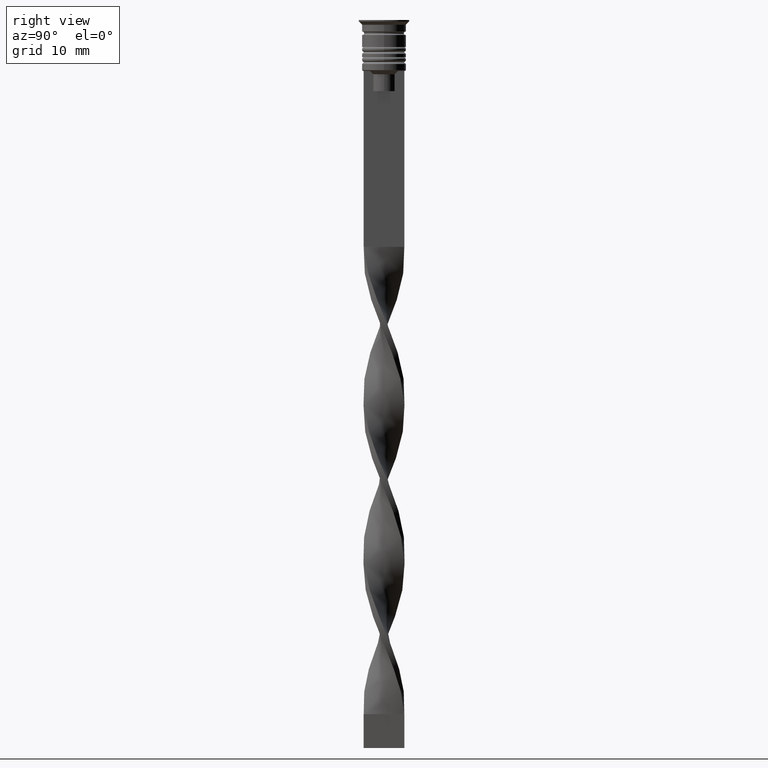
[diagram: clean part render]
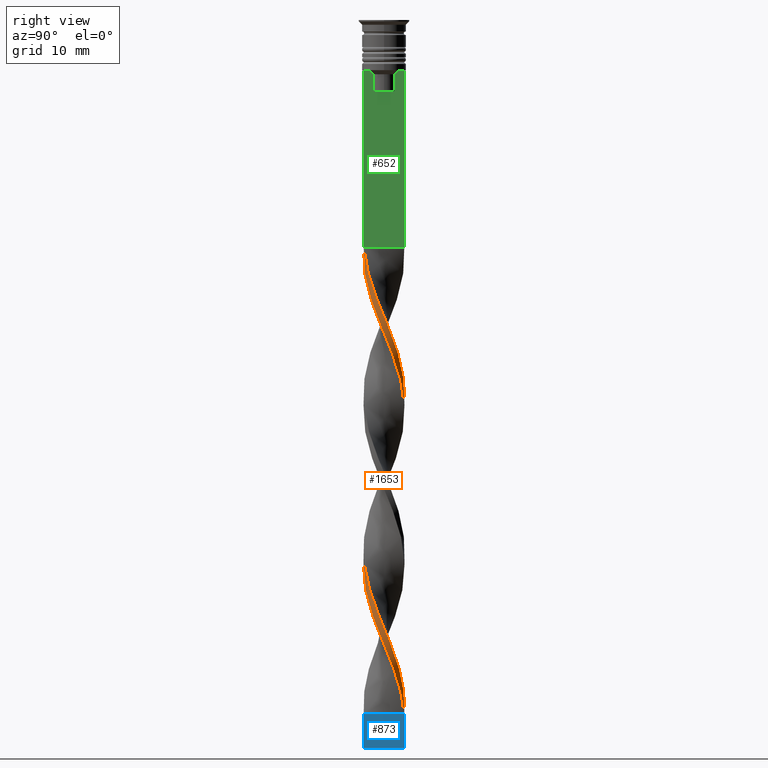
[diagram: same view with three faces highlighted in distinct colors, each labeled with its STEP entity id]
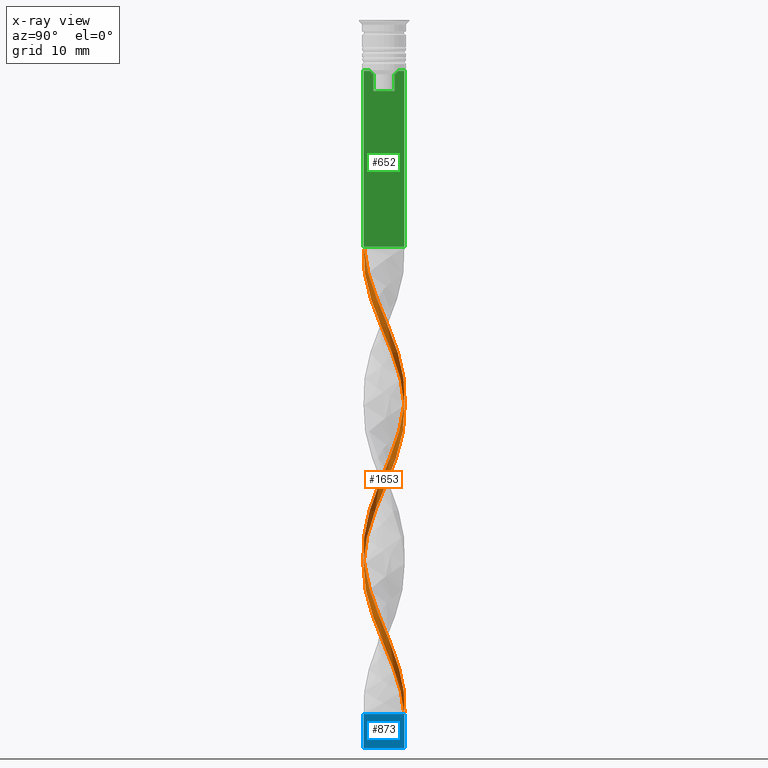
[diagram: x-ray of the same camera — body ghosted, the three highlighted faces saturated]
A machine part, right view with three faces highlighted in distinct colors.
The next image is the same camera in x-ray (body ghosted, the three faces saturated) — at least one of them is partly hidden behind the body in this view.
Their STEP definitions:

[orange] entity #1653 — the highlighted face is a freeform B-spline surface patch.
#3 = CARTESIAN_POINT ( 'NONE',  ( 1.203417901575699167, -2.793167620134377582, -81.26923076923077360 ) ) ;
#5 = CARTESIAN_POINT ( 'NONE',  ( 2.813682533735953228, 1.212256617197150721, -46.76923076923076650 ) ) ;
#6 = CARTESIAN_POINT ( 'NONE',  ( 0.9514415033047003423, -2.888729662981513790, -37.03846153846154010 ) ) ;
#21 = CARTESIAN_POINT ( 'NONE',  ( 2.627746284534977050, 1.531322782470313726, -47.65384615384616041 ) ) ;
#24 = CARTESIAN_POINT ( 'NONE',  ( 2.909946448908425243, -0.9584295337030735995, -41.46153846153846700 ) ) ;
#42 = CARTESIAN_POINT ( 'NONE',  ( 2.596021493184668572, -1.626975080790205919, -85.69230769230770761 ) ) ;
#44 = CARTESIAN_POINT ( 'NONE',  ( 2.982351171577512172, -0.5963065397849001137, -88.34615384615385381 ) ) ;
#50 =( BOUNDED_CURVE ( )  B_SPLINE_CURVE ( 2, ( #2878, #80, #1563, #62, #6, #2070, #547, #2139, #2862, #787, #2663, #837, #2613, #1078, #1061, #2895, #765, #2844, #3129, #581, #264, #1594, #3146, #2087, #531, #1628, #1367, #3111, #1037, #516, #2647, #315, #2409, #2108, #1835, #278, #802, #1114, #1435, #2726, #2212, #868, #2998, #1681, #665, #2749, #3250, #2679, #1715, #1918, #2946, #1387, #1165, #1645, #1416, #3213, #634, #3196, #2161, #1970, #397, #2432, #2966, #854, #349, #614, #648, #1694, #148, #99, #416, #2480, #1182, #2983, #905, #1456, #1664, #3234, #2696 ),
 .UNSPECIFIED., .F., .T. ) 
 B_SPLINE_CURVE_WITH_KNOTS ( ( 3, 2, 2, 2, 2, 2, 2, 2, 2, 2, 2, 2, 2, 2, 2, 2, 2, 2, 2, 2, 2, 2, 2, 2, 2, 2, 2, 2, 2, 2, 2, 2, 2, 2, 2, 2, 2, 2, 2, 3 ),
 ( 0.000000000000000000, 0.01923076923076923184, 0.03846153846153846367, 0.05769230769230768857, 0.07692307692307692735, 0.09615384615384615918, 0.1153846153846153771, 0.1346153846153846090, 0.1538461538461538547, 0.1730769230769230449, 0.1923076923076923184, 0.2115384615384615363, 0.2307692307692307543, 0.2500000000000000000, 0.2692307692307692180, 0.2884615384615384359, 0.3076923076923077094, 0.3269230769230769273, 0.3461538461538460898, 0.3653846153846153633, 0.3846153846153846367, 0.4038461538461539102, 0.4230769230769230727, 0.4423076923076922906, 0.4615384615384615086, 0.4807692307692307820, 0.5000000000000000000, 0.5192307692307692735, 0.5384615384615384359, 0.5576923076923077094, 0.5769230769230768718, 0.5961538461538461453, 0.6153846153846154188, 0.6346153846153845812, 0.6538461538461538547, 0.6730769230769230171, 0.6923076923076921796, 0.7115384615384615641, 0.7307692307692307265, 0.7500000000000000000 ),
 .UNSPECIFIED. ) 
 CURVE ( )  GEOMETRIC_REPRESENTATION_ITEM ( )  RATIONAL_B_SPLINE_CURVE ( ( 1.000000000000000000, 0.9927088740980539727, 1.000000000000000000, 0.9927088740980539727, 1.000000000000000000, 0.9927088740980539727, 1.000000000000000000, 0.9927088740980539727, 1.000000000000000000, 0.9927088740980539727, 1.000000000000000000, 0.9927088740980539727, 1.000000000000000000, 0.9927088740980539727, 1.000000000000000000, 0.9927088740980539727, 1.000000000000000000, 0.9927088740980539727, 1.000000000000000000, 0.9927088740980539727, 1.000000000000000000, 0.9927088740980539727, 1.000000000000000000, 0.9927088740980539727, 1.000000000000000000, 0.9927088740980539727, 1.000000000000000000, 0.9927088740980539727, 1.000000000000000000, 0.9927088740980539727, 1.000000000000000000, 0.9927088740980539727, 1.000000000000000000, 0.9927088740980539727, 1.000000000000000000, 0.9927088740980539727, 1.000000000000000000, 0.9927088740980539727, 1.000000000000000000, 0.9927088740980539727, 1.000000000000000000, 0.9927088740980539727, 1.000000000000000000, 0.9927088740980539727, 1.000000000000000000, 0.9927088740980539727, 1.000000000000000000, 0.9927088740980539727, 1.000000000000000000, 0.9927088740980539727, 1.000000000000000000, 0.9927088740980539727, 1.000000000000000000, 0.9927088740980539727, 1.000000000000000000, 0.9927088740980539727, 1.000000000000000000, 0.9927088740980539727, 1.000000000000000000, 0.9927088740980539727, 1.000000000000000000, 0.9927088740980539727, 1.000000000000000000, 0.9927088740980539727, 1.000000000000000000, 0.9927088740980539727, 1.000000000000000000, 0.9927088740980539727, 1.000000000000000000, 0.9927088740980539727, 1.000000000000000000, 0.9927088740980539727, 1.000000000000000000, 0.9927088740980539727, 1.000000000000000000, 0.9927088740980539727, 1.000000000000000000, 0.9927088740980539727, 1.000000000000000000 ) ) 
 REPRESENTATION_ITEM ( '' )  );
#59 = CARTESIAN_POINT ( 'NONE',  ( -2.752983971046547129, 1.292702307246639704, -63.57692307692308731 ) ) ;
#61 = CARTESIAN_POINT ( 'NONE',  ( 2.813682533735953228, 1.212256617197150721, -92.76923076923075939 ) ) ;
#62 = CARTESIAN_POINT ( 'NONE',  ( 0.6006862186325125919, -3.004255577232739949, -36.15384615384615330 ) ) ;
#79 = CARTESIAN_POINT ( 'NONE',  ( 2.441810035334000428, -1.850388947743477841, -41.46153846153846700 ) ) ;
#80 = CARTESIAN_POINT ( 'NONE',  ( -0.1357340503332185033, -3.060710991611130360, -34.38461538461538680 ) ) ;
#98 = CARTESIAN_POINT ( 'NONE',  ( 1.302196787976888759, 2.773203748730288076, -98.07692307692308020 ) ) ;
#99 = CARTESIAN_POINT ( 'NONE',  ( 2.909946448908426131, 0.9584295337030729334, -94.53846153846154721 ) ) ;
#112 = CARTESIAN_POINT ( 'NONE',  ( -0.1357340503332185311, -3.060710991611130360, -34.38461538461538680 ) ) ;
#148 = CARTESIAN_POINT ( 'NONE',  ( 2.982351171577512616, 0.5963065397848988924, -93.65384615384617462 ) ) ;
#161 = CARTESIAN_POINT ( 'NONE',  ( -3.022034030597048559, 0.5036723384328420927, -68.00000000000000000 ) ) ;
#173 = EDGE_CURVE ( 'NONE', #2765, #446, #1980, .T. ) ;
#174 = CARTESIAN_POINT ( 'NONE',  ( 1.615112600636834594, -2.577093573633701062, -84.80769230769232081 ) ) ;
#193 = CARTESIAN_POINT ( 'NONE',  ( 2.596021493184669016, 1.626975080790204142, -96.30769230769232081 ) ) ;
#211 = CARTESIAN_POINT ( 'NONE',  ( 0.8642659496667817187, -2.939289008388869640, -34.38461538461538680 ) ) ;
#224 = CARTESIAN_POINT ( 'NONE',  ( 2.131225204431203668, -2.200966749995606264, -37.92307692307692690 ) ) ;
#243 = CARTESIAN_POINT ( 'NONE',  ( -0.6006862186325142572, -3.004255577232739949, -76.84615384615386802 ) ) ;
#246 = CARTESIAN_POINT ( 'NONE',  ( -2.813682533735954117, -1.212256617197149833, -69.76923076923077360 ) ) ;
#261 = CARTESIAN_POINT ( 'NONE',  ( 2.184919224315391872, 2.115686173140295168, -49.42307692307693401 ) ) ;
#263 = CARTESIAN_POINT ( 'NONE',  ( -3.038394962421823831, -0.1347443962830561781, -67.11538461538461320 ) ) ;
#264 = CARTESIAN_POINT ( 'NONE',  ( 2.363623348807936786, 1.913970915392904759, -51.19230769230769340 ) ) ;
#274 = CARTESIAN_POINT ( 'NONE',  ( 3.022034030597048559, 0.5036723384328410935, -91.00000000000001421 ) ) ;
#277 = CARTESIAN_POINT ( 'NONE',  ( -1.615112600636836371, -2.577093573633699730, -74.19230769230769340 ) ) ;
#278 = CARTESIAN_POINT ( 'NONE',  ( -2.441810035333999540, 1.850388947743479395, -64.46153846153845279 ) ) ;
#294 = CARTESIAN_POINT ( 'NONE',  ( -1.615112600636836371, -2.577093573633699730, -74.19230769230769340 ) ) ;
#296 = CARTESIAN_POINT ( 'NONE',  ( 1.203417901575700499, 2.793167620134376694, -54.73076923076923350 ) ) ;
#312 = CARTESIAN_POINT ( 'NONE',  ( 3.054755894246598658, -0.2341835458667260728, -43.23076923076923350 ) ) ;
#314 = CARTESIAN_POINT ( 'NONE',  ( 0.8642659496667829400, 2.939289008388869640, -55.61538461538462741 ) ) ;
#315 = CARTESIAN_POINT ( 'NONE',  ( -1.302196787976887871, 2.773203748730288964, -60.92307692307692690 ) ) ;
#329 = CARTESIAN_POINT ( 'NONE',  ( 1.542569853484617060, -2.647046231879885081, -82.15384615384617462 ) ) ;
#348 = CARTESIAN_POINT ( 'NONE',  ( -0.4999999999999995559, 3.000000000000000000, -102.5000000000000142 ) ) ;
#349 = CARTESIAN_POINT ( 'NONE',  ( 2.917858282166500228, -0.8579644778149968509, -90.11538461538462741 ) ) ;
#365 = CARTESIAN_POINT ( 'NONE',  ( 0.1357340503332165604, -3.060710991611130805, -78.61538461538461320 ) ) ;
#373 = ORIENTED_EDGE ( 'NONE', *, *, #919, .T. ) ;
#377 = CARTESIAN_POINT ( 'NONE',  ( -0.1357340503332169490, 3.060710991611130360, -101.6153846153846274 ) ) ;
#379 = CARTESIAN_POINT ( 'NONE',  ( 0.9514415033047003423, -2.888729662981513790, -83.03846153846154721 ) ) ;
#396 = CARTESIAN_POINT ( 'NONE',  ( 0.2324760841496471830, -3.032483284421934933, -81.26923076923077360 ) ) ;
#397 = CARTESIAN_POINT ( 'NONE',  ( 2.184919224315390984, -2.115686173140296056, -86.57692307692308020 ) ) ;
#415 = CARTESIAN_POINT ( 'NONE',  ( -2.627746284534976162, 1.531322782470315280, -65.34615384615385381 ) ) ;
#416 = CARTESIAN_POINT ( 'NONE',  ( 2.752983971046547573, 1.292702307246638815, -95.42307692307693401 ) ) ;
#424 = CARTESIAN_POINT ( 'NONE',  ( 0.4999999999999998890, -3.000000000000000000, -33.50000000000000000 ) ) ;
#429 = CARTESIAN_POINT ( 'NONE',  ( -2.813682533735953228, 1.212256617197151165, -66.23076923076922640 ) ) ;
#444 = CARTESIAN_POINT ( 'NONE',  ( -2.917858282166500228, 0.8579644778149978501, -67.11538461538461320 ) ) ;
#446 = VERTEX_POINT ( 'NONE', #1547 ) ;
#456 = DIRECTION ( 'NONE',  ( -1.000000000000000000, 0.000000000000000000, 0.000000000000000000 ) ) ;
#468 = CARTESIAN_POINT ( 'NONE',  ( 2.363623348807935898, -1.913970915392906091, -38.80769230769230660 ) ) ;
#479 = CARTESIAN_POINT ( 'NONE',  ( 2.184919224315391872, 2.115686173140295168, -49.42307692307693401 ) ) ;
#513 = CARTESIAN_POINT ( 'NONE',  ( -0.2324760841496502084, -3.032483284421934489, -77.73076923076924061 ) ) ;
#515 = CARTESIAN_POINT ( 'NONE',  ( -0.4999999999999995559, 3.000000000000000000, -56.50000000000000711 ) ) ;
#516 = CARTESIAN_POINT ( 'NONE',  ( -0.6006862186325113706, 3.004255577232740393, -59.15384615384616041 ) ) ;
#527 = CARTESIAN_POINT ( 'NONE',  ( 2.752983971046547129, -1.292702307246639704, -86.57692307692308020 ) ) ;
#530 = CARTESIAN_POINT ( 'NONE',  ( -2.752983971046547129, 1.292702307246639704, -63.57692307692308731 ) ) ;
#531 = CARTESIAN_POINT ( 'NONE',  ( 1.203417901575700499, 2.793167620134376694, -54.73076923076923350 ) ) ;
#543 = CARTESIAN_POINT ( 'NONE',  ( -3.054755894246598658, 0.2341835458667258507, -66.23076923076922640 ) ) ;
#546 = CARTESIAN_POINT ( 'NONE',  ( 2.813682533735953228, -1.212256617197151165, -43.23076923076922640 ) ) ;
#547 = CARTESIAN_POINT ( 'NONE',  ( 1.615112600636834594, -2.577093573633701062, -38.80769230769230660 ) ) ;
#561 = CARTESIAN_POINT ( 'NONE',  ( -0.8642659496667810526, 2.939289008388869640, -57.38461538461538680 ) ) ;
#564 = CARTESIAN_POINT ( 'NONE',  ( 0.2324760841496471830, -3.032483284421934933, -35.26923076923077360 ) ) ;
#578 = CARTESIAN_POINT ( 'NONE',  ( -2.184919224315392317, -2.115686173140294724, -72.42307692307691980 ) ) ;
#580 = CARTESIAN_POINT ( 'NONE',  ( 2.184919224315390984, -2.115686173140296056, -40.57692307692308020 ) ) ;
#581 = CARTESIAN_POINT ( 'NONE',  ( 2.596021493184669016, 1.626975080790204364, -50.30769230769231370 ) ) ;
#596 = CARTESIAN_POINT ( 'NONE',  ( 3.022034030597048559, 0.5036723384328410935, -91.00000000000001421 ) ) ;
#605 = EDGE_CURVE ( 'NONE', #1507, #2770, #1225, .T. ) ;
#613 = CARTESIAN_POINT ( 'NONE',  ( -1.302196787976888759, -2.773203748730288076, -75.07692307692308020 ) ) ;
#614 = CARTESIAN_POINT ( 'NONE',  ( 3.022034030597048559, -0.5036723384328417596, -91.00000000000001421 ) ) ;
#634 = CARTESIAN_POINT ( 'NONE',  ( 0.9514415033047003423, -2.888729662981513790, -83.03846153846154721 ) ) ;
#642 = CARTESIAN_POINT ( 'NONE',  ( 0.1666666666666671293, 3.000000000000000000, -102.5000000000000142 ) ) ;
#645 = CARTESIAN_POINT ( 'NONE',  ( 1.615112600636835927, 2.577093573633700174, -97.19230769230770761 ) ) ;
#647 = CARTESIAN_POINT ( 'NONE',  ( 2.982351171577512616, 0.5963065397848988924, -93.65384615384617462 ) ) ;
#648 = CARTESIAN_POINT ( 'NONE',  ( 3.038394962421823386, -0.1347443962830584541, -91.88461538461540101 ) ) ;
#663 = CARTESIAN_POINT ( 'NONE',  ( -1.542569853484618392, -2.647046231879884193, -76.84615384615386802 ) ) ;
#665 = CARTESIAN_POINT ( 'NONE',  ( -2.752983971046547573, -1.292702307246638149, -72.42307692307691980 ) ) ;
#677 = CARTESIAN_POINT ( 'NONE',  ( 0.5000000000000004441, 3.000000000000000000, -102.5000000000000142 ) ) ;
#682 = ORIENTED_EDGE ( 'NONE', *, *, #605, .T. ) ;
#697 = CARTESIAN_POINT ( 'NONE',  ( 2.184919224315390984, -2.115686173140296056, -86.57692307692308020 ) ) ;
#733 = CARTESIAN_POINT ( 'NONE',  ( 0.4999999999999998890, -3.000000000000000000, -33.50000000000000000 ) ) ;
#738 =( BOUNDED_CURVE ( )  B_SPLINE_CURVE ( 2, ( #1746, #2764, #2510, #3126, #3142, #3157, #2875, #799, #1847, #2644, #2337, #312, #1280, #1075, #1862, #2066, #21, #1296, #261, #1033, #1611, #2120, #816, #1349, #3089, #1881, #2889, #561, #2390, #2376, #832, #2082, #2623, #783, #59, #1090, #2135, #543, #3346, #1832, #2910, #1056, #1590, #1575, #578, #2105, #294, #2574, #762, #243, #513, #2324, #1332, #1018, #3, #3107, #1809, #2840, #2859, #42, #527, #1559, #1311, #2593, #2609, #274, #2353, #1144, #2188, #1642, #2427, #1179, #645, #2675, #851, #2660, #2962, #377, #3209 ),
 .UNSPECIFIED., .F., .T. ) 
 B_SPLINE_CURVE_WITH_KNOTS ( ( 3, 2, 2, 2, 2, 2, 2, 2, 2, 2, 2, 2, 2, 2, 2, 2, 2, 2, 2, 2, 2, 2, 2, 2, 2, 2, 2, 2, 2, 2, 2, 2, 2, 2, 2, 2, 2, 2, 2, 3 ),
 ( 0.000000000000000000, 0.01923076923076923184, 0.03846153846153846367, 0.05769230769230768857, 0.07692307692307692735, 0.09615384615384615918, 0.1153846153846153771, 0.1346153846153846090, 0.1538461538461538547, 0.1730769230769230449, 0.1923076923076923184, 0.2115384615384615363, 0.2307692307692307543, 0.2500000000000000000, 0.2692307692307692180, 0.2884615384615384359, 0.3076923076923077094, 0.3269230769230769273, 0.3461538461538460898, 0.3653846153846153633, 0.3846153846153846367, 0.4038461538461539102, 0.4230769230769230727, 0.4423076923076922906, 0.4615384615384615086, 0.4807692307692307820, 0.5000000000000000000, 0.5192307692307692735, 0.5384615384615384359, 0.5576923076923077094, 0.5769230769230768718, 0.5961538461538461453, 0.6153846153846154188, 0.6346153846153845812, 0.6538461538461538547, 0.6730769230769230171, 0.6923076923076921796, 0.7115384615384615641, 0.7307692307692307265, 0.7500000000000000000 ),
 .UNSPECIFIED. ) 
 CURVE ( )  GEOMETRIC_REPRESENTATION_ITEM ( )  RATIONAL_B_SPLINE_CURVE ( ( 1.000000000000000000, 0.9927088740980539727, 1.000000000000000000, 0.9927088740980539727, 1.000000000000000000, 0.9927088740980539727, 1.000000000000000000, 0.9927088740980539727, 1.000000000000000000, 0.9927088740980539727, 1.000000000000000000, 0.9927088740980539727, 1.000000000000000000, 0.9927088740980539727, 1.000000000000000000, 0.9927088740980539727, 1.000000000000000000, 0.9927088740980539727, 1.000000000000000000, 0.9927088740980539727, 1.000000000000000000, 0.9927088740980539727, 1.000000000000000000, 0.9927088740980539727, 1.000000000000000000, 0.9927088740980539727, 1.000000000000000000, 0.9927088740980539727, 1.000000000000000000, 0.9927088740980539727, 1.000000000000000000, 0.9927088740980539727, 1.000000000000000000, 0.9927088740980539727, 1.000000000000000000, 0.9927088740980539727, 1.000000000000000000, 0.9927088740980539727, 1.000000000000000000, 0.9927088740980539727, 1.000000000000000000, 0.9927088740980539727, 1.000000000000000000, 0.9927088740980539727, 1.000000000000000000, 0.9927088740980539727, 1.000000000000000000, 0.9927088740980539727, 1.000000000000000000, 0.9927088740980539727, 1.000000000000000000, 0.9927088740980539727, 1.000000000000000000, 0.9927088740980539727, 1.000000000000000000, 0.9927088740980539727, 1.000000000000000000, 0.9927088740980539727, 1.000000000000000000, 0.9927088740980539727, 1.000000000000000000, 0.9927088740980539727, 1.000000000000000000, 0.9927088740980539727, 1.000000000000000000, 0.9927088740980539727, 1.000000000000000000, 0.9927088740980539727, 1.000000000000000000, 0.9927088740980539727, 1.000000000000000000, 0.9927088740980539727, 1.000000000000000000, 0.9927088740980539727, 1.000000000000000000, 0.9927088740980539727, 1.000000000000000000, 0.9927088740980539727, 1.000000000000000000 ) ) 
 REPRESENTATION_ITEM ( '' )  );
#750 = CARTESIAN_POINT ( 'NONE',  ( -2.917858282166500672, -0.8579644778149938533, -68.88461538461538680 ) ) ;
#762 = CARTESIAN_POINT ( 'NONE',  ( -0.9514415033047030068, -2.888729662981513346, -75.96153846153846700 ) ) ;
#764 = CARTESIAN_POINT ( 'NONE',  ( -1.542569853484615727, 2.647046231879885525, -59.15384615384616041 ) ) ;
#765 = CARTESIAN_POINT ( 'NONE',  ( 2.982351171577512616, 0.5963065397848988924, -47.65384615384616041 ) ) ;
#783 = CARTESIAN_POINT ( 'NONE',  ( -2.596021493184667683, 1.626975080790206141, -62.69230769230770051 ) ) ;
#786 = CARTESIAN_POINT ( 'NONE',  ( 2.596021493184668572, -1.626975080790205697, -39.69230769230769340 ) ) ;
#787 = CARTESIAN_POINT ( 'NONE',  ( 2.441810035334000428, -1.850388947743478063, -41.46153846153846700 ) ) ;
#799 = CARTESIAN_POINT ( 'NONE',  ( 2.596021493184668572, -1.626975080790205919, -39.69230769230769340 ) ) ;
#801 = CARTESIAN_POINT ( 'NONE',  ( 2.441810035334000872, 1.850388947743477175, -94.53846153846153300 ) ) ;
#802 = CARTESIAN_POINT ( 'NONE',  ( -2.627746284534976162, 1.531322782470315280, -65.34615384615385381 ) ) ;
#816 = CARTESIAN_POINT ( 'NONE',  ( 0.9514415033047012304, 2.888729662981513346, -52.96153846153845990 ) ) ;
#818 = CARTESIAN_POINT ( 'NONE',  ( 2.131225204431203668, -2.200966749995606264, -83.92307692307691980 ) ) ;
#832 = CARTESIAN_POINT ( 'NONE',  ( -1.836897528957910364, 2.424006490937745451, -60.03846153846154010 ) ) ;
#836 = CARTESIAN_POINT ( 'NONE',  ( -0.6006862186325113706, 3.004255577232740393, -59.15384615384616041 ) ) ;
#837 = CARTESIAN_POINT ( 'NONE',  ( 2.813682533735953228, -1.212256617197151165, -43.23076923076923350 ) ) ;
#851 = CARTESIAN_POINT ( 'NONE',  ( 0.9514415033047012304, 2.888729662981513346, -98.96153846153848122 ) ) ;
#853 = CARTESIAN_POINT ( 'NONE',  ( 0.4999999999999998890, -3.000000000000000000, -79.50000000000001421 ) ) ;
#854 = CARTESIAN_POINT ( 'NONE',  ( 2.813682533735953228, -1.212256617197151165, -89.23076923076924061 ) ) ;
#867 = CARTESIAN_POINT ( 'NONE',  ( 3.054755894246598658, 0.2341835458667255176, -46.76923076923076650 ) ) ;
#868 = CARTESIAN_POINT ( 'NONE',  ( -3.054755894246599102, -0.2341835458667243242, -69.76923076923077360 ) ) ;
#904 = CARTESIAN_POINT ( 'NONE',  ( -0.8642659496667833841, -2.939289008388869195, -78.61538461538461320 ) ) ;
#905 = CARTESIAN_POINT ( 'NONE',  ( 1.836897528957911030, 2.424006490937744562, -98.96153846153848122 ) ) ;
#919 = EDGE_CURVE ( 'NONE', #2770, #446, #50, .T. ) ;
#934 = CARTESIAN_POINT ( 'NONE',  ( 2.752983971046547573, 1.292702307246638815, -95.42307692307693401 ) ) ;
#953 = CARTESIAN_POINT ( 'NONE',  ( -2.752983971046547573, -1.292702307246638149, -72.42307692307691980 ) ) ;
#986 = CARTESIAN_POINT ( 'NONE',  ( 0.6006862186325140351, 3.004255577232739949, -53.84615384615384670 ) ) ;
#1006 = CARTESIAN_POINT ( 'NONE',  ( -1.203417901575698279, 2.793167620134377582, -58.26923076923077360 ) ) ;
#1018 = CARTESIAN_POINT ( 'NONE',  ( 0.8642659496667816077, -2.939289008388869640, -80.38461538461538680 ) ) ;
#1021 = CARTESIAN_POINT ( 'NONE',  ( -2.627746284534977050, -1.531322782470314170, -70.65384615384616041 ) ) ;
#1033 = CARTESIAN_POINT ( 'NONE',  ( 1.928028413296782428, 2.380983398537112716, -50.30769230769231370 ) ) ;
#1037 = CARTESIAN_POINT ( 'NONE',  ( -0.2324760841496461561, 3.032483284421934933, -58.26923076923077360 ) ) ;
#1056 = CARTESIAN_POINT ( 'NONE',  ( -2.813682533735954117, -1.212256617197149833, -69.76923076923077360 ) ) ;
#1061 = CARTESIAN_POINT ( 'NONE',  ( 3.038394962421823386, -0.1347443962830584541, -45.88461538461538680 ) ) ;
#1075 = CARTESIAN_POINT ( 'NONE',  ( 3.022034030597048559, 0.5036723384328410935, -45.00000000000000711 ) ) ;
#1077 = CARTESIAN_POINT ( 'NONE',  ( 0.9514415033047003423, -2.888729662981513790, -37.03846153846154010 ) ) ;
#1078 = CARTESIAN_POINT ( 'NONE',  ( 3.022034030597048559, -0.5036723384328417596, -45.00000000000000711 ) ) ;
#1089 =( BOUNDED_SURFACE ( )  B_SPLINE_SURFACE ( 1, 2, ( 
 ( #733, #211, #1796, #2107, #1540, #224, #468, #786, #3332, #24, #2086, #2577, #1314, #1813, #1765, #5, #1283, #2326, #479, #2558, #2357, #1834, #1263, #986, #2544, #3091, #515, #3349, #1006, #764, #2290, #1562, #3312, #2861, #530, #2596, #2309, #2037, #263, #1299, #750, #246, #1021, #2069, #2340, #1577, #277, #613, #1663, #2929, #2912, #365, #853, #1146, #2431, #329, #1366, #818, #1614, #1401, #3195, #1865, #44, #1849, #2159, #596, #2407, #61, #3178, #801, #1644, #2877, #1130, #98, #1902, #2122, #2444, #2677, #348 ),
 ( #2378, #112, #564, #2646, #1077, #1386, #1335, #1113, #580, #79, #2894, #546, #2695, #2175, #3145, #867, #1917, #1093, #1884, #2944, #2662, #2190, #1593, #2628, #296, #314, #2137, #3161, #1351, #836, #2392, #1627, #3015, #3233, #2495, #2460, #415, #429, #444, #161, #1455, #1198, #3281, #2982, #953, #1938, #1731, #2509, #2710, #663, #1954, #904, #1693, #2257, #396, #2003, #379, #1714, #174, #1484, #697, #1745, #2526, #1969, #2997, #3028, #2777, #1434, #647, #2748, #934, #193, #1229, #1415, #1680, #2240, #3262, #2226, #3211 ) ),
 .UNSPECIFIED., .F., .F., .F. ) 
 B_SPLINE_SURFACE_WITH_KNOTS ( ( 2, 2 ),
 ( 3, 2, 2, 2, 2, 2, 2, 2, 2, 2, 2, 2, 2, 2, 2, 2, 2, 2, 2, 2, 2, 2, 2, 2, 2, 2, 2, 2, 2, 2, 2, 2, 2, 2, 2, 2, 2, 2, 2, 3 ),
 ( 0.000000000000000000, 1.000000000000000000 ),
 ( 0.000000000000000000, 0.01923076923076923184, 0.03846153846153846367, 0.05769230769230769551, 0.07692307692307692735, 0.09615384615384615918, 0.1153846153846153910, 0.1346153846153846090, 0.1538461538461538547, 0.1730769230769230727, 0.1923076923076923184, 0.2115384615384615363, 0.2307692307692307820, 0.2500000000000000000, 0.2692307692307692180, 0.2884615384615384359, 0.3076923076923077094, 0.3269230769230769273, 0.3461538461538461453, 0.3653846153846153633, 0.3846153846153846367, 0.4038461538461538547, 0.4230769230769230727, 0.4423076923076922906, 0.4615384615384615641, 0.4807692307692307820, 0.5000000000000000000, 0.5192307692307692735, 0.5384615384615384359, 0.5576923076923077094, 0.5769230769230768718, 0.5961538461538461453, 0.6153846153846154188, 0.6346153846153845812, 0.6538461538461538547, 0.6730769230769231282, 0.6923076923076922906, 0.7115384615384615641, 0.7307692307692307265, 0.7500000000000000000 ),
 .UNSPECIFIED. ) 
 GEOMETRIC_REPRESENTATION_ITEM ( )  RATIONAL_B_SPLINE_SURFACE ( (
 ( 1.000000000000000000, 0.9927088740980539727, 1.000000000000000000, 0.9927088740980539727, 1.000000000000000000, 0.9927088740980539727, 1.000000000000000000, 0.9927088740980539727, 1.000000000000000000, 0.9927088740980539727, 1.000000000000000000, 0.9927088740980539727, 1.000000000000000000, 0.9927088740980539727, 1.000000000000000000, 0.9927088740980539727, 1.000000000000000000, 0.9927088740980539727, 1.000000000000000000, 0.9927088740980539727, 1.000000000000000000, 0.9927088740980539727, 1.000000000000000000, 0.9927088740980539727, 1.000000000000000000, 0.9927088740980539727, 1.000000000000000000, 0.9927088740980539727, 1.000000000000000000, 0.9927088740980539727, 1.000000000000000000, 0.9927088740980539727, 1.000000000000000000, 0.9927088740980539727, 1.000000000000000000, 0.9927088740980539727, 1.000000000000000000, 0.9927088740980539727, 1.000000000000000000, 0.9927088740980539727, 1.000000000000000000, 0.9927088740980539727, 1.000000000000000000, 0.9927088740980539727, 1.000000000000000000, 0.9927088740980539727, 1.000000000000000000, 0.9927088740980539727, 1.000000000000000000, 0.9927088740980539727, 1.000000000000000000, 0.9927088740980539727, 1.000000000000000000, 0.9927088740980539727, 1.000000000000000000, 0.9927088740980539727, 1.000000000000000000, 0.9927088740980539727, 1.000000000000000000, 0.9927088740980539727, 1.000000000000000000, 0.9927088740980539727, 1.000000000000000000, 0.9927088740980539727, 1.000000000000000000, 0.9927088740980539727, 1.000000000000000000, 0.9927088740980539727, 1.000000000000000000, 0.9927088740980539727, 1.000000000000000000, 0.9927088740980539727, 1.000000000000000000, 0.9927088740980539727, 1.000000000000000000, 0.9927088740980539727, 1.000000000000000000, 0.9927088740980539727, 1.000000000000000000),
 ( 1.000000000000000000, 0.9927088740980539727, 1.000000000000000000, 0.9927088740980539727, 1.000000000000000000, 0.9927088740980539727, 1.000000000000000000, 0.9927088740980539727, 1.000000000000000000, 0.9927088740980539727, 1.000000000000000000, 0.9927088740980539727, 1.000000000000000000, 0.9927088740980539727, 1.000000000000000000, 0.9927088740980539727, 1.000000000000000000, 0.9927088740980539727, 1.000000000000000000, 0.9927088740980539727, 1.000000000000000000, 0.9927088740980539727, 1.000000000000000000, 0.9927088740980539727, 1.000000000000000000, 0.9927088740980539727, 1.000000000000000000, 0.9927088740980539727, 1.000000000000000000, 0.9927088740980539727, 1.000000000000000000, 0.9927088740980539727, 1.000000000000000000, 0.9927088740980539727, 1.000000000000000000, 0.9927088740980539727, 1.000000000000000000, 0.9927088740980539727, 1.000000000000000000, 0.9927088740980539727, 1.000000000000000000, 0.9927088740980539727, 1.000000000000000000, 0.9927088740980539727, 1.000000000000000000, 0.9927088740980539727, 1.000000000000000000, 0.9927088740980539727, 1.000000000000000000, 0.9927088740980539727, 1.000000000000000000, 0.9927088740980539727, 1.000000000000000000, 0.9927088740980539727, 1.000000000000000000, 0.9927088740980539727, 1.000000000000000000, 0.9927088740980539727, 1.000000000000000000, 0.9927088740980539727, 1.000000000000000000, 0.9927088740980539727, 1.000000000000000000, 0.9927088740980539727, 1.000000000000000000, 0.9927088740980539727, 1.000000000000000000, 0.9927088740980539727, 1.000000000000000000, 0.9927088740980539727, 1.000000000000000000, 0.9927088740980539727, 1.000000000000000000, 0.9927088740980539727, 1.000000000000000000, 0.9927088740980539727, 1.000000000000000000, 0.9927088740980539727, 1.000000000000000000) ) ) 
 REPRESENTATION_ITEM ( '' )  SURFACE ( )  );
#1090 = CARTESIAN_POINT ( 'NONE',  ( -2.909946448908425243, 0.9584295337030753759, -64.46153846153845279 ) ) ;
#1093 = CARTESIAN_POINT ( 'NONE',  ( 2.909946448908425687, 0.9584295337030729334, -48.53846153846154010 ) ) ;
#1113 = CARTESIAN_POINT ( 'NONE',  ( 1.928028413296781762, -2.380983398537113604, -39.69230769230769340 ) ) ;
#1114 = CARTESIAN_POINT ( 'NONE',  ( -2.813682533735953228, 1.212256617197151165, -66.23076923076922640 ) ) ;
#1130 = CARTESIAN_POINT ( 'NONE',  ( 1.615112600636835927, 2.577093573633700174, -97.19230769230770761 ) ) ;
#1144 = CARTESIAN_POINT ( 'NONE',  ( 2.813682533735953228, 1.212256617197150721, -92.76923076923077360 ) ) ;
#1146 = CARTESIAN_POINT ( 'NONE',  ( 0.8642659496667817187, -2.939289008388869640, -80.38461538461538680 ) ) ;
#1165 = CARTESIAN_POINT ( 'NONE',  ( -0.5000000000000001110, -3.000000000000000000, -79.50000000000001421 ) ) ;
#1171 = EDGE_CURVE ( 'NONE', #1507, #2765, #738, .T. ) ;
#1179 = CARTESIAN_POINT ( 'NONE',  ( 1.928028413296782428, 2.380983398537112716, -96.30769230769232081 ) ) ;
#1180 = ORIENTED_EDGE ( 'NONE', *, *, #173, .F. ) ;
#1182 = CARTESIAN_POINT ( 'NONE',  ( 2.363623348807936786, 1.913970915392904759, -97.19230769230770761 ) ) ;
#1198 = CARTESIAN_POINT ( 'NONE',  ( -3.054755894246599102, -0.2341835458667243519, -69.76923076923077360 ) ) ;
#1225 = LINE ( 'NONE', #424, #3001 ) ;
#1229 = CARTESIAN_POINT ( 'NONE',  ( 2.363623348807936786, 1.913970915392904759, -97.19230769230770761 ) ) ;
#1263 = CARTESIAN_POINT ( 'NONE',  ( 0.9514415033047012304, 2.888729662981513346, -52.96153846153845990 ) ) ;
#1280 = CARTESIAN_POINT ( 'NONE',  ( 3.038394962421823831, 0.1347443962830572051, -44.11538461538462030 ) ) ;
#1283 = CARTESIAN_POINT ( 'NONE',  ( 2.627746284534977050, 1.531322782470313726, -47.65384615384616041 ) ) ;
#1296 = CARTESIAN_POINT ( 'NONE',  ( 2.441810035334000872, 1.850388947743477397, -48.53846153846154721 ) ) ;
#1299 = CARTESIAN_POINT ( 'NONE',  ( -3.022034030597048559, -0.5036723384328407604, -68.00000000000000000 ) ) ;
#1311 = CARTESIAN_POINT ( 'NONE',  ( 2.982351171577512172, -0.5963065397849001137, -88.34615384615385381 ) ) ;
#1314 = CARTESIAN_POINT ( 'NONE',  ( 3.038394962421823831, 0.1347443962830572051, -44.11538461538462030 ) ) ;
#1332 = CARTESIAN_POINT ( 'NONE',  ( 0.4999999999999998890, -3.000000000000000000, -79.50000000000001421 ) ) ;
#1335 = CARTESIAN_POINT ( 'NONE',  ( 1.615112600636834594, -2.577093573633701062, -38.80769230769230660 ) ) ;
#1349 = CARTESIAN_POINT ( 'NONE',  ( 0.6006862186325140351, 3.004255577232739949, -53.84615384615384670 ) ) ;
#1351 = CARTESIAN_POINT ( 'NONE',  ( -0.2324760841496461561, 3.032483284421934933, -58.26923076923077360 ) ) ;
#1366 = CARTESIAN_POINT ( 'NONE',  ( 1.836897528957910364, -2.424006490937745451, -83.03846153846154721 ) ) ;
#1367 = CARTESIAN_POINT ( 'NONE',  ( 0.5000000000000004441, 3.000000000000000000, -56.50000000000000711 ) ) ;
#1386 = CARTESIAN_POINT ( 'NONE',  ( 1.302196787976887871, -2.773203748730288520, -37.92307692307692690 ) ) ;
#1387 = CARTESIAN_POINT ( 'NONE',  ( -0.8642659496667834951, -2.939289008388869195, -78.61538461538461320 ) ) ;
#1393 = CARTESIAN_POINT ( 'NONE',  ( 0.4999999999999998890, -3.000000000000000000, -33.50000000000000000 ) ) ;
#1401 = CARTESIAN_POINT ( 'NONE',  ( 2.596021493184668572, -1.626975080790205697, -85.69230769230770761 ) ) ;
#1415 = CARTESIAN_POINT ( 'NONE',  ( 2.131225204431204556, 2.200966749995605820, -98.07692307692308020 ) ) ;
#1416 = CARTESIAN_POINT ( 'NONE',  ( 0.2324760841496471830, -3.032483284421934933, -81.26923076923077360 ) ) ;
#1434 = CARTESIAN_POINT ( 'NONE',  ( 3.054755894246598658, 0.2341835458667255176, -92.76923076923075939 ) ) ;
#1435 = CARTESIAN_POINT ( 'NONE',  ( -2.917858282166500228, 0.8579644778149978501, -67.11538461538461320 ) ) ;
#1455 = CARTESIAN_POINT ( 'NONE',  ( -3.038394962421823386, 0.1347443962830601472, -68.88461538461538680 ) ) ;
#1456 = CARTESIAN_POINT ( 'NONE',  ( 1.542569853484617948, 2.647046231879884193, -99.84615384615386802 ) ) ;
#1484 = CARTESIAN_POINT ( 'NONE',  ( 1.928028413296781762, -2.380983398537113604, -85.69230769230770761 ) ) ;
#1507 = VERTEX_POINT ( 'NONE', #1393 ) ;
#1540 = CARTESIAN_POINT ( 'NONE',  ( 1.836897528957910364, -2.424006490937745451, -37.03846153846154010 ) ) ;
#1547 = CARTESIAN_POINT ( 'NONE',  ( 0.5000000000000004441, 3.000000000000000000, -102.5000000000000142 ) ) ;
#1559 = CARTESIAN_POINT ( 'NONE',  ( 2.909946448908425687, -0.9584295337030735995, -87.46153846153849543 ) ) ;
#1562 = CARTESIAN_POINT ( 'NONE',  ( -2.131225204431203668, 2.200966749995606708, -60.92307692307691980 ) ) ;
#1563 = CARTESIAN_POINT ( 'NONE',  ( 0.2324760841496471830, -3.032483284421934933, -35.26923076923077360 ) ) ;
#1575 = CARTESIAN_POINT ( 'NONE',  ( -2.441810035334001761, -1.850388947743476509, -71.53846153846154721 ) ) ;
#1577 = CARTESIAN_POINT ( 'NONE',  ( -1.928028413296783983, -2.380983398537111828, -73.30769230769232081 ) ) ;
#1590 = CARTESIAN_POINT ( 'NONE',  ( -2.627746284534977050, -1.531322782470314170, -70.65384615384616041 ) ) ;
#1593 = CARTESIAN_POINT ( 'NONE',  ( 1.836897528957911030, 2.424006490937744562, -52.96153846153845990 ) ) ;
#1594 = CARTESIAN_POINT ( 'NONE',  ( 2.131225204431204556, 2.200966749995605820, -52.07692307692308020 ) ) ;
#1611 = CARTESIAN_POINT ( 'NONE',  ( 1.615112600636835927, 2.577093573633700174, -51.19230769230769340 ) ) ;
#1614 = CARTESIAN_POINT ( 'NONE',  ( 2.363623348807935898, -1.913970915392906091, -84.80769230769232081 ) ) ;
#1627 = CARTESIAN_POINT ( 'NONE',  ( -1.302196787976887649, 2.773203748730288964, -60.92307692307691980 ) ) ;
#1628 = CARTESIAN_POINT ( 'NONE',  ( 0.8642659496667830510, 2.939289008388869640, -55.61538461538462741 ) ) ;
#1642 = CARTESIAN_POINT ( 'NONE',  ( 2.441810035334000872, 1.850388947743477397, -94.53846153846154721 ) ) ;
#1644 = CARTESIAN_POINT ( 'NONE',  ( 2.184919224315391872, 2.115686173140295168, -95.42307692307693401 ) ) ;
#1645 = CARTESIAN_POINT ( 'NONE',  ( -0.1357340503332185033, -3.060710991611130360, -80.38461538461538680 ) ) ;
#1653 = ADVANCED_FACE ( 'NONE', ( #2843 ), #1089, .T. ) ;
#1663 = CARTESIAN_POINT ( 'NONE',  ( -0.9514415033047030068, -2.888729662981513346, -75.96153846153846700 ) ) ;
#1664 = CARTESIAN_POINT ( 'NONE',  ( 1.203417901575700499, 2.793167620134376694, -100.7307692307692406 ) ) ;
#1680 = CARTESIAN_POINT ( 'NONE',  ( 1.836897528957911030, 2.424006490937744562, -98.96153846153848122 ) ) ;
#1681 = CARTESIAN_POINT ( 'NONE',  ( -2.909946448908426575, -0.9584295337030714901, -71.53846153846154721 ) ) ;
#1693 = CARTESIAN_POINT ( 'NONE',  ( -0.5000000000000001110, -3.000000000000000000, -79.50000000000001421 ) ) ;
#1694 = CARTESIAN_POINT ( 'NONE',  ( 3.054755894246598658, 0.2341835458667255176, -92.76923076923077360 ) ) ;
#1706 = CARTESIAN_POINT ( 'NONE',  ( -0.4999999999999995559, 3.000000000000000000, -102.5000000000000142 ) ) ;
#1714 = CARTESIAN_POINT ( 'NONE',  ( 1.302196787976887871, -2.773203748730288520, -83.92307692307691980 ) ) ;
#1715 = CARTESIAN_POINT ( 'NONE',  ( -1.836897528957912584, -2.424006490937744118, -75.96153846153846700 ) ) ;
#1731 = CARTESIAN_POINT ( 'NONE',  ( -2.363623348807936786, -1.913970915392904315, -74.19230769230769340 ) ) ;
#1745 = CARTESIAN_POINT ( 'NONE',  ( 2.441810035334000428, -1.850388947743477841, -87.46153846153849543 ) ) ;
#1746 = CARTESIAN_POINT ( 'NONE',  ( 0.4999999999999998890, -3.000000000000000000, -33.50000000000000000 ) ) ;
#1765 = CARTESIAN_POINT ( 'NONE',  ( 2.917858282166500672, 0.8579644778149956297, -45.88461538461538680 ) ) ;
#1796 = CARTESIAN_POINT ( 'NONE',  ( 1.203417901575699167, -2.793167620134377582, -35.26923076923077360 ) ) ;
#1809 = CARTESIAN_POINT ( 'NONE',  ( 1.836897528957910364, -2.424006490937745451, -83.03846153846154721 ) ) ;
#1813 = CARTESIAN_POINT ( 'NONE',  ( 3.022034030597048559, 0.5036723384328410935, -45.00000000000000711 ) ) ;
#1832 = CARTESIAN_POINT ( 'NONE',  ( -3.022034030597048559, -0.5036723384328408715, -68.00000000000000000 ) ) ;
#1834 = CARTESIAN_POINT ( 'NONE',  ( 1.302196787976888759, 2.773203748730288076, -52.07692307692308020 ) ) ;
#1835 = CARTESIAN_POINT ( 'NONE',  ( -2.184919224315390984, 2.115686173140296056, -63.57692307692308731 ) ) ;
#1847 = CARTESIAN_POINT ( 'NONE',  ( 2.752983971046547129, -1.292702307246639704, -40.57692307692308020 ) ) ;
#1849 = CARTESIAN_POINT ( 'NONE',  ( 3.054755894246598658, -0.2341835458667260450, -89.23076923076922640 ) ) ;
#1862 = CARTESIAN_POINT ( 'NONE',  ( 2.917858282166500672, 0.8579644778149956297, -45.88461538461538680 ) ) ;
#1865 = CARTESIAN_POINT ( 'NONE',  ( 2.909946448908425243, -0.9584295337030735995, -87.46153846153849543 ) ) ;
#1881 = CARTESIAN_POINT ( 'NONE',  ( -0.1357340503332169490, 3.060710991611130360, -55.61538461538462741 ) ) ;
#1884 = CARTESIAN_POINT ( 'NONE',  ( 2.752983971046547573, 1.292702307246638815, -49.42307692307693401 ) ) ;
#1902 = CARTESIAN_POINT ( 'NONE',  ( 0.9514415033047012304, 2.888729662981513346, -98.96153846153848122 ) ) ;
#1917 = CARTESIAN_POINT ( 'NONE',  ( 2.982351171577512616, 0.5963065397848988924, -47.65384615384616041 ) ) ;
#1918 = CARTESIAN_POINT ( 'NONE',  ( -1.542569853484618170, -2.647046231879884193, -76.84615384615386802 ) ) ;
#1938 = CARTESIAN_POINT ( 'NONE',  ( -2.596021493184669904, -1.626975080790202810, -73.30769230769232081 ) ) ;
#1954 = CARTESIAN_POINT ( 'NONE',  ( -1.203417901575701832, -2.793167620134376250, -77.73076923076924061 ) ) ;
#1969 = CARTESIAN_POINT ( 'NONE',  ( 2.813682533735953228, -1.212256617197151165, -89.23076923076922640 ) ) ;
#1970 = CARTESIAN_POINT ( 'NONE',  ( 1.928028413296781762, -2.380983398537114049, -85.69230769230770761 ) ) ;
#1980 = B_SPLINE_CURVE_WITH_KNOTS ( 'NONE', 3,
 ( #1706, #3008, #642, #677 ),
 .UNSPECIFIED., .F., .F.,
 ( 4, 4 ),
 ( 0.000000000000000000, 1.000000000000000000 ),
 .UNSPECIFIED. ) ;
#2003 = CARTESIAN_POINT ( 'NONE',  ( 0.6006862186325125919, -3.004255577232739949, -82.15384615384617462 ) ) ;
#2008 = CARTESIAN_POINT ( 'NONE',  ( -0.5000000000000001110, -3.000000000000000000, -33.50000000000000000 ) ) ;
#2037 = CARTESIAN_POINT ( 'NONE',  ( -3.054755894246598658, 0.2341835458667258230, -66.23076923076922640 ) ) ;
#2066 = CARTESIAN_POINT ( 'NONE',  ( 2.813682533735953228, 1.212256617197150721, -46.76923076923077360 ) ) ;
#2069 = CARTESIAN_POINT ( 'NONE',  ( -2.441810035334001761, -1.850388947743476509, -71.53846153846154721 ) ) ;
#2070 = CARTESIAN_POINT ( 'NONE',  ( 1.302196787976888093, -2.773203748730288520, -37.92307692307692690 ) ) ;
#2082 = CARTESIAN_POINT ( 'NONE',  ( -2.131225204431203668, 2.200966749995606708, -60.92307692307692690 ) ) ;
#2086 = CARTESIAN_POINT ( 'NONE',  ( 2.982351171577512172, -0.5963065397849001137, -42.34615384615385381 ) ) ;
#2087 = CARTESIAN_POINT ( 'NONE',  ( 1.542569853484617948, 2.647046231879884193, -53.84615384615384670 ) ) ;
#2105 = CARTESIAN_POINT ( 'NONE',  ( -1.928028413296783983, -2.380983398537111828, -73.30769230769232081 ) ) ;
#2107 = CARTESIAN_POINT ( 'NONE',  ( 1.542569853484617060, -2.647046231879885081, -36.15384615384615330 ) ) ;
#2108 = CARTESIAN_POINT ( 'NONE',  ( -1.928028413296780652, 2.380983398537114493, -62.69230769230770051 ) ) ;
#2120 = CARTESIAN_POINT ( 'NONE',  ( 1.302196787976888759, 2.773203748730288076, -52.07692307692308020 ) ) ;
#2122 = CARTESIAN_POINT ( 'NONE',  ( 0.6006862186325140351, 3.004255577232739949, -99.84615384615385381 ) ) ;
#2135 = CARTESIAN_POINT ( 'NONE',  ( -2.982351171577512172, 0.5963065397849003357, -65.34615384615385381 ) ) ;
#2137 = CARTESIAN_POINT ( 'NONE',  ( 0.5000000000000004441, 3.000000000000000000, -56.50000000000000711 ) ) ;
#2139 = CARTESIAN_POINT ( 'NONE',  ( 1.928028413296781762, -2.380983398537114049, -39.69230769230769340 ) ) ;
#2159 = CARTESIAN_POINT ( 'NONE',  ( 3.038394962421823831, 0.1347443962830572051, -90.11538461538462741 ) ) ;
#2161 = CARTESIAN_POINT ( 'NONE',  ( 1.615112600636834594, -2.577093573633701062, -84.80769230769232081 ) ) ;
#2175 = CARTESIAN_POINT ( 'NONE',  ( 3.022034030597048559, -0.5036723384328417596, -45.00000000000000711 ) ) ;
#2188 = CARTESIAN_POINT ( 'NONE',  ( 2.627746284534977050, 1.531322782470313726, -93.65384615384617462 ) ) ;
#2190 = CARTESIAN_POINT ( 'NONE',  ( 2.131225204431204556, 2.200966749995605820, -52.07692307692308020 ) ) ;
#2212 = CARTESIAN_POINT ( 'NONE',  ( -3.038394962421823386, 0.1347443962830601472, -68.88461538461538680 ) ) ;
#2226 = CARTESIAN_POINT ( 'NONE',  ( 0.8642659496667829400, 2.939289008388869640, -101.6153846153846132 ) ) ;
#2240 = CARTESIAN_POINT ( 'NONE',  ( 1.542569853484618170, 2.647046231879884193, -99.84615384615385381 ) ) ;
#2257 = CARTESIAN_POINT ( 'NONE',  ( -0.1357340503332185311, -3.060710991611130360, -80.38461538461538680 ) ) ;
#2290 = CARTESIAN_POINT ( 'NONE',  ( -1.836897528957910364, 2.424006490937745451, -60.03846153846154010 ) ) ;
#2309 = CARTESIAN_POINT ( 'NONE',  ( -2.982351171577512172, 0.5963065397849003357, -65.34615384615385381 ) ) ;
#2324 = CARTESIAN_POINT ( 'NONE',  ( 0.1357340503332165882, -3.060710991611130805, -78.61538461538461320 ) ) ;
#2326 = CARTESIAN_POINT ( 'NONE',  ( 2.441810035334000872, 1.850388947743477175, -48.53846153846154010 ) ) ;
#2337 = CARTESIAN_POINT ( 'NONE',  ( 2.982351171577512172, -0.5963065397849001137, -42.34615384615385381 ) ) ;
#2340 = CARTESIAN_POINT ( 'NONE',  ( -2.184919224315392317, -2.115686173140294724, -72.42307692307691980 ) ) ;
#2353 = CARTESIAN_POINT ( 'NONE',  ( 2.917858282166500672, 0.8579644778149956297, -91.88461538461540101 ) ) ;
#2357 = CARTESIAN_POINT ( 'NONE',  ( 1.615112600636835927, 2.577093573633700174, -51.19230769230769340 ) ) ;
#2376 = CARTESIAN_POINT ( 'NONE',  ( -1.542569853484615727, 2.647046231879885525, -59.15384615384616041 ) ) ;
#2378 = CARTESIAN_POINT ( 'NONE',  ( -0.5000000000000001110, -3.000000000000000000, -33.50000000000000000 ) ) ;
#2390 = CARTESIAN_POINT ( 'NONE',  ( -1.203417901575698279, 2.793167620134377582, -58.26923076923077360 ) ) ;
#2392 = CARTESIAN_POINT ( 'NONE',  ( -0.9514415033047003423, 2.888729662981513790, -60.03846153846154010 ) ) ;
#2407 = CARTESIAN_POINT ( 'NONE',  ( 2.917858282166500672, 0.8579644778149956297, -91.88461538461540101 ) ) ;
#2409 = CARTESIAN_POINT ( 'NONE',  ( -1.615112600636834150, 2.577093573633701062, -61.80769230769231370 ) ) ;
#2427 = CARTESIAN_POINT ( 'NONE',  ( 2.184919224315391872, 2.115686173140295168, -95.42307692307693401 ) ) ;
#2431 = CARTESIAN_POINT ( 'NONE',  ( 1.203417901575699167, -2.793167620134377582, -81.26923076923077360 ) ) ;
#2432 = CARTESIAN_POINT ( 'NONE',  ( 2.441810035334000428, -1.850388947743478063, -87.46153846153849543 ) ) ;
#2444 = CARTESIAN_POINT ( 'NONE',  ( 0.2324760841496485153, 3.032483284421934489, -100.7307692307692406 ) ) ;
#2460 = CARTESIAN_POINT ( 'NONE',  ( -2.441810035333999540, 1.850388947743479173, -64.46153846153845279 ) ) ;
#2480 = CARTESIAN_POINT ( 'NONE',  ( 2.596021493184669016, 1.626975080790204364, -96.30769230769232081 ) ) ;
#2495 = CARTESIAN_POINT ( 'NONE',  ( -2.184919224315390984, 2.115686173140296056, -63.57692307692308731 ) ) ;
#2509 = CARTESIAN_POINT ( 'NONE',  ( -2.131225204431204556, -2.200966749995605820, -75.07692307692308020 ) ) ;
#2510 = CARTESIAN_POINT ( 'NONE',  ( 1.203417901575699167, -2.793167620134377582, -35.26923076923077360 ) ) ;
#2526 = CARTESIAN_POINT ( 'NONE',  ( 2.627746284534976606, -1.531322782470315058, -88.34615384615385381 ) ) ;
#2534 = CARTESIAN_POINT ( 'NONE',  ( -0.4999999999999995559, 3.000000000000000000, -102.5000000000000142 ) ) ;
#2544 = CARTESIAN_POINT ( 'NONE',  ( 0.2324760841496485153, 3.032483284421934489, -54.73076923076923350 ) ) ;
#2558 = CARTESIAN_POINT ( 'NONE',  ( 1.928028413296782428, 2.380983398537112716, -50.30769230769232081 ) ) ;
#2574 = CARTESIAN_POINT ( 'NONE',  ( -1.302196787976888759, -2.773203748730288076, -75.07692307692308020 ) ) ;
#2577 = CARTESIAN_POINT ( 'NONE',  ( 3.054755894246598658, -0.2341835458667260450, -43.23076923076922640 ) ) ;
#2593 = CARTESIAN_POINT ( 'NONE',  ( 3.054755894246598658, -0.2341835458667260728, -89.23076923076924061 ) ) ;
#2596 = CARTESIAN_POINT ( 'NONE',  ( -2.909946448908424799, 0.9584295337030754869, -64.46153846153845279 ) ) ;
#2609 = CARTESIAN_POINT ( 'NONE',  ( 3.038394962421823831, 0.1347443962830572051, -90.11538461538462741 ) ) ;
#2613 = CARTESIAN_POINT ( 'NONE',  ( 2.917858282166500228, -0.8579644778149968509, -44.11538461538462030 ) ) ;
#2623 = CARTESIAN_POINT ( 'NONE',  ( -2.363623348807935898, 1.913970915392906536, -61.80769230769231370 ) ) ;
#2628 = CARTESIAN_POINT ( 'NONE',  ( 1.542569853484618170, 2.647046231879884193, -53.84615384615384670 ) ) ;
#2644 = CARTESIAN_POINT ( 'NONE',  ( 2.909946448908425687, -0.9584295337030735995, -41.46153846153846700 ) ) ;
#2645 = EDGE_LOOP ( 'NONE', ( #682, #373, #1180, #2672 ) ) ;
#2646 = CARTESIAN_POINT ( 'NONE',  ( 0.6006862186325125919, -3.004255577232739949, -36.15384615384615330 ) ) ;
#2647 = CARTESIAN_POINT ( 'NONE',  ( -0.9514415033047003423, 2.888729662981513790, -60.03846153846154010 ) ) ;
#2660 = CARTESIAN_POINT ( 'NONE',  ( 0.6006862186325140351, 3.004255577232739949, -99.84615384615386802 ) ) ;
#2662 = CARTESIAN_POINT ( 'NONE',  ( 2.363623348807936786, 1.913970915392904759, -51.19230769230769340 ) ) ;
#2663 = CARTESIAN_POINT ( 'NONE',  ( 2.627746284534976606, -1.531322782470315058, -42.34615384615385381 ) ) ;
#2672 = ORIENTED_EDGE ( 'NONE', *, *, #1171, .F. ) ;
#2675 = CARTESIAN_POINT ( 'NONE',  ( 1.302196787976888759, 2.773203748730288076, -98.07692307692309441 ) ) ;
#2677 = CARTESIAN_POINT ( 'NONE',  ( -0.1357340503332169768, 3.060710991611130360, -101.6153846153846132 ) ) ;
#2679 = CARTESIAN_POINT ( 'NONE',  ( -2.131225204431204556, -2.200966749995605820, -75.07692307692308020 ) ) ;
#2695 = CARTESIAN_POINT ( 'NONE',  ( 2.917858282166500228, -0.8579644778149968509, -44.11538461538462030 ) ) ;
#2696 = CARTESIAN_POINT ( 'NONE',  ( 0.5000000000000004441, 3.000000000000000000, -102.5000000000000142 ) ) ;
#2710 = CARTESIAN_POINT ( 'NONE',  ( -1.836897528957912584, -2.424006490937744118, -75.96153846153846700 ) ) ;
#2726 = CARTESIAN_POINT ( 'NONE',  ( -3.022034030597048559, 0.5036723384328420927, -68.00000000000000000 ) ) ;
#2748 = CARTESIAN_POINT ( 'NONE',  ( 2.909946448908425687, 0.9584295337030729334, -94.53846153846153300 ) ) ;
#2749 = CARTESIAN_POINT ( 'NONE',  ( -2.596021493184669904, -1.626975080790202810, -73.30769230769232081 ) ) ;
#2764 = CARTESIAN_POINT ( 'NONE',  ( 0.8642659496667816077, -2.939289008388869640, -34.38461538461538680 ) ) ;
#2765 = VERTEX_POINT ( 'NONE', #2534 ) ;
#2770 = VERTEX_POINT ( 'NONE', #2008 ) ;
#2777 = CARTESIAN_POINT ( 'NONE',  ( 3.038394962421823386, -0.1347443962830584541, -91.88461538461540101 ) ) ;
#2840 = CARTESIAN_POINT ( 'NONE',  ( 2.131225204431203668, -2.200966749995606264, -83.92307692307693401 ) ) ;
#2843 = FACE_OUTER_BOUND ( 'NONE', #2645, .T. ) ;
#2844 = CARTESIAN_POINT ( 'NONE',  ( 2.909946448908426131, 0.9584295337030729334, -48.53846153846154721 ) ) ;
#2859 = CARTESIAN_POINT ( 'NONE',  ( 2.363623348807935898, -1.913970915392906091, -84.80769230769232081 ) ) ;
#2861 = CARTESIAN_POINT ( 'NONE',  ( -2.596021493184667683, 1.626975080790206141, -62.69230769230770051 ) ) ;
#2862 = CARTESIAN_POINT ( 'NONE',  ( 2.184919224315390984, -2.115686173140296056, -40.57692307692308020 ) ) ;
#2875 = CARTESIAN_POINT ( 'NONE',  ( 2.363623348807935898, -1.913970915392906091, -38.80769230769230660 ) ) ;
#2877 = CARTESIAN_POINT ( 'NONE',  ( 1.928028413296782428, 2.380983398537112716, -96.30769230769232081 ) ) ;
#2878 = CARTESIAN_POINT ( 'NONE',  ( -0.5000000000000001110, -3.000000000000000000, -33.50000000000000000 ) ) ;
#2889 = CARTESIAN_POINT ( 'NONE',  ( -0.4999999999999995559, 3.000000000000000000, -56.50000000000000711 ) ) ;
#2894 = CARTESIAN_POINT ( 'NONE',  ( 2.627746284534976606, -1.531322782470315058, -42.34615384615385381 ) ) ;
#2895 = CARTESIAN_POINT ( 'NONE',  ( 3.054755894246598658, 0.2341835458667255176, -46.76923076923077360 ) ) ;
#2910 = CARTESIAN_POINT ( 'NONE',  ( -2.917858282166500672, -0.8579644778149938533, -68.88461538461538680 ) ) ;
#2912 = CARTESIAN_POINT ( 'NONE',  ( -0.2324760841496502084, -3.032483284421934489, -77.73076923076924061 ) ) ;
#2929 = CARTESIAN_POINT ( 'NONE',  ( -0.6006862186325142572, -3.004255577232739949, -76.84615384615386802 ) ) ;
#2944 = CARTESIAN_POINT ( 'NONE',  ( 2.596021493184669016, 1.626975080790204142, -50.30769230769232081 ) ) ;
#2946 = CARTESIAN_POINT ( 'NONE',  ( -1.203417901575701832, -2.793167620134376250, -77.73076923076924061 ) ) ;
#2962 = CARTESIAN_POINT ( 'NONE',  ( 0.2324760841496485153, 3.032483284421934489, -100.7307692307692406 ) ) ;
#2966 = CARTESIAN_POINT ( 'NONE',  ( 2.627746284534976606, -1.531322782470315058, -88.34615384615385381 ) ) ;
#2982 = CARTESIAN_POINT ( 'NONE',  ( -2.909946448908426131, -0.9584295337030713791, -71.53846153846154721 ) ) ;
#2983 = CARTESIAN_POINT ( 'NONE',  ( 2.131225204431204556, 2.200966749995605820, -98.07692307692309441 ) ) ;
#2997 = CARTESIAN_POINT ( 'NONE',  ( 2.917858282166500228, -0.8579644778149968509, -90.11538461538462741 ) ) ;
#2998 = CARTESIAN_POINT ( 'NONE',  ( -2.982351171577512616, -0.5963065397848993365, -70.65384615384616041 ) ) ;
#3001 = VECTOR ( 'NONE', #456, 1000.000000000000000 ) ;
#3008 = CARTESIAN_POINT ( 'NONE',  ( -0.1666666666666662411, 3.000000000000000000, -102.5000000000000142 ) ) ;
#3015 = CARTESIAN_POINT ( 'NONE',  ( -1.615112600636834150, 2.577093573633701062, -61.80769230769231370 ) ) ;
#3028 = CARTESIAN_POINT ( 'NONE',  ( 3.022034030597048559, -0.5036723384328417596, -91.00000000000001421 ) ) ;
#3089 = CARTESIAN_POINT ( 'NONE',  ( 0.2324760841496485153, 3.032483284421934489, -54.73076923076923350 ) ) ;
#3091 = CARTESIAN_POINT ( 'NONE',  ( -0.1357340503332169768, 3.060710991611130360, -55.61538461538462741 ) ) ;
#3107 = CARTESIAN_POINT ( 'NONE',  ( 1.542569853484617060, -2.647046231879885081, -82.15384615384617462 ) ) ;
#3111 = CARTESIAN_POINT ( 'NONE',  ( 0.1357340503332191972, 3.060710991611130360, -57.38461538461538680 ) ) ;
#3126 = CARTESIAN_POINT ( 'NONE',  ( 1.542569853484617060, -2.647046231879885081, -36.15384615384615330 ) ) ;
#3129 = CARTESIAN_POINT ( 'NONE',  ( 2.752983971046547573, 1.292702307246638815, -49.42307692307693401 ) ) ;
#3142 = CARTESIAN_POINT ( 'NONE',  ( 1.836897528957910364, -2.424006490937745451, -37.03846153846154010 ) ) ;
#3145 = CARTESIAN_POINT ( 'NONE',  ( 3.038394962421823386, -0.1347443962830584541, -45.88461538461538680 ) ) ;
#3146 = CARTESIAN_POINT ( 'NONE',  ( 1.836897528957911030, 2.424006490937744562, -52.96153846153845990 ) ) ;
#3157 = CARTESIAN_POINT ( 'NONE',  ( 2.131225204431203668, -2.200966749995606264, -37.92307692307692690 ) ) ;
#3161 = CARTESIAN_POINT ( 'NONE',  ( 0.1357340503332191695, 3.060710991611130360, -57.38461538461538680 ) ) ;
#3178 = CARTESIAN_POINT ( 'NONE',  ( 2.627746284534977050, 1.531322782470313726, -93.65384615384617462 ) ) ;
#3195 = CARTESIAN_POINT ( 'NONE',  ( 2.752983971046547129, -1.292702307246639704, -86.57692307692308020 ) ) ;
#3196 = CARTESIAN_POINT ( 'NONE',  ( 1.302196787976888093, -2.773203748730288520, -83.92307692307693401 ) ) ;
#3209 = CARTESIAN_POINT ( 'NONE',  ( -0.4999999999999995559, 3.000000000000000000, -102.5000000000000142 ) ) ;
#3211 = CARTESIAN_POINT ( 'NONE',  ( 0.5000000000000004441, 3.000000000000000000, -102.5000000000000142 ) ) ;
#3213 = CARTESIAN_POINT ( 'NONE',  ( 0.6006862186325125919, -3.004255577232739949, -82.15384615384617462 ) ) ;
#3233 = CARTESIAN_POINT ( 'NONE',  ( -1.928028413296780652, 2.380983398537114049, -62.69230769230770051 ) ) ;
#3234 = CARTESIAN_POINT ( 'NONE',  ( 0.8642659496667830510, 2.939289008388869640, -101.6153846153846274 ) ) ;
#3250 = CARTESIAN_POINT ( 'NONE',  ( -2.363623348807936786, -1.913970915392904315, -74.19230769230769340 ) ) ;
#3262 = CARTESIAN_POINT ( 'NONE',  ( 1.203417901575700499, 2.793167620134376694, -100.7307692307692406 ) ) ;
#3281 = CARTESIAN_POINT ( 'NONE',  ( -2.982351171577512616, -0.5963065397848993365, -70.65384615384616041 ) ) ;
#3312 = CARTESIAN_POINT ( 'NONE',  ( -2.363623348807935898, 1.913970915392906536, -61.80769230769231370 ) ) ;
#3332 = CARTESIAN_POINT ( 'NONE',  ( 2.752983971046547129, -1.292702307246639704, -40.57692307692308020 ) ) ;
#3346 = CARTESIAN_POINT ( 'NONE',  ( -3.038394962421823831, -0.1347443962830561781, -67.11538461538461320 ) ) ;
#3349 = CARTESIAN_POINT ( 'NONE',  ( -0.8642659496667810526, 2.939289008388869640, -57.38461538461538680 ) ) ;

[blue] entity #873 — the highlighted planar face has unit normal (-1, 0, 0).
#26 = VECTOR ( 'NONE', #3084, 1000.000000000000000 ) ;
#54 = ORIENTED_EDGE ( 'NONE', *, *, #2792, .F. ) ;
#188 = CARTESIAN_POINT ( 'NONE',  ( 0.5000000000000004441, 3.000000000000000000, -107.5000000000000142 ) ) ;
#190 = DIRECTION ( 'NONE',  ( -0.000000000000000000, -0.000000000000000000, 1.000000000000000000 ) ) ;
#330 = PLANE ( 'NONE',  #3319 ) ;
#446 = VERTEX_POINT ( 'NONE', #1547 ) ;
#565 = DIRECTION ( 'NONE',  ( -1.000000000000000000, 1.084202172485504434E-16, 0.000000000000000000 ) ) ;
#653 = CARTESIAN_POINT ( 'NONE',  ( 0.4999999999999997780, -3.000000000000000000, -107.5000000000000142 ) ) ;
#708 = LINE ( 'NONE', #1480, #2573 ) ;
#710 = VERTEX_POINT ( 'NONE', #1284 ) ;
#736 = B_SPLINE_CURVE_WITH_KNOTS ( 'NONE', 3,
 ( #1127, #1846, #3125, #3156 ),
 .UNSPECIFIED., .F., .F.,
 ( 4, 4 ),
 ( 0.000000000000000000, 1.000000000000000000 ),
 .UNSPECIFIED. ) ;
#873 = ADVANCED_FACE ( 'NONE', ( #3162 ), #330, .F. ) ;
#923 = ORIENTED_EDGE ( 'NONE', *, *, #1253, .F. ) ;
#1127 = CARTESIAN_POINT ( 'NONE',  ( 0.5000000000000004441, 3.000000000000000000, -102.5000000000000142 ) ) ;
#1172 = VECTOR ( 'NONE', #3286, 1000.000000000000000 ) ;
#1234 = CARTESIAN_POINT ( 'NONE',  ( 0.5000000000000004441, 3.000000000000000000, -107.5000000000000142 ) ) ;
#1253 = EDGE_CURVE ( 'NONE', #1587, #710, #708, .T. ) ;
#1284 = CARTESIAN_POINT ( 'NONE',  ( 0.4999999999999997780, -3.000000000000000000, -102.5000000000000142 ) ) ;
#1315 = DIRECTION ( 'NONE',  ( -1.084202172485504434E-16, -1.000000000000000000, 0.000000000000000000 ) ) ;
#1479 = LINE ( 'NONE', #188, #26 ) ;
#1480 = CARTESIAN_POINT ( 'NONE',  ( 0.4999999999999997780, -3.000000000000000000, -107.5000000000000142 ) ) ;
#1492 = LINE ( 'NONE', #1234, #1172 ) ;
#1547 = CARTESIAN_POINT ( 'NONE',  ( 0.5000000000000004441, 3.000000000000000000, -102.5000000000000142 ) ) ;
#1587 = VERTEX_POINT ( 'NONE', #653 ) ;
#1737 = ORIENTED_EDGE ( 'NONE', *, *, #2365, .T. ) ;
#1846 = CARTESIAN_POINT ( 'NONE',  ( 0.5000000000000002220, 1.000000000000000000, -102.5000000000000142 ) ) ;
#1953 = EDGE_CURVE ( 'NONE', #446, #710, #736, .T. ) ;
#1986 = EDGE_LOOP ( 'NONE', ( #2554, #923, #54, #1737 ) ) ;
#2018 = VERTEX_POINT ( 'NONE', #2375 ) ;
#2365 = EDGE_CURVE ( 'NONE', #2018, #446, #1479, .T. ) ;
#2375 = CARTESIAN_POINT ( 'NONE',  ( 0.5000000000000004441, 3.000000000000000000, -107.5000000000000142 ) ) ;
#2393 = CARTESIAN_POINT ( 'NONE',  ( 0.5000000000000004441, 3.000000000000000000, -107.5000000000000142 ) ) ;
#2554 = ORIENTED_EDGE ( 'NONE', *, *, #1953, .T. ) ;
#2573 = VECTOR ( 'NONE', #190, 1000.000000000000000 ) ;
#2792 = EDGE_CURVE ( 'NONE', #2018, #1587, #1492, .T. ) ;
#3084 = DIRECTION ( 'NONE',  ( -0.000000000000000000, -0.000000000000000000, 1.000000000000000000 ) ) ;
#3125 = CARTESIAN_POINT ( 'NONE',  ( 0.5000000000000000000, -1.000000000000000000, -102.5000000000000142 ) ) ;
#3156 = CARTESIAN_POINT ( 'NONE',  ( 0.4999999999999997780, -3.000000000000000000, -102.5000000000000142 ) ) ;
#3162 = FACE_OUTER_BOUND ( 'NONE', #1986, .T. ) ;
#3286 = DIRECTION ( 'NONE',  ( -1.084202172485504434E-16, -1.000000000000000000, 0.000000000000000000 ) ) ;
#3319 = AXIS2_PLACEMENT_3D ( 'NONE', #2393, #565, #1315 ) ;

[green] entity #652 — the highlighted planar face has unit normal (-1, 0, 0).
#70 = AXIS2_PLACEMENT_3D ( 'NONE', #723, #1982, #187 ) ;
#128 = DIRECTION ( 'NONE',  ( 0.000000000000000000, -1.000000000000000000, 0.000000000000000000 ) ) ;
#182 = VECTOR ( 'NONE', #3179, 1000.000000000000000 ) ;
#187 = DIRECTION ( 'NONE',  ( 0.000000000000000000, 0.000000000000000000, 1.000000000000000000 ) ) ;
#196 = EDGE_LOOP ( 'NONE', ( #2590, #1432, #378, #1877, #549, #1654, #2443, #271, #1989, #1318 ) ) ;
#204 = LINE ( 'NONE', #2773, #1937 ) ;
#271 = ORIENTED_EDGE ( 'NONE', *, *, #528, .T. ) ;
#320 = CARTESIAN_POINT ( 'NONE',  ( 0.4999999999999998890, -3.000000000000000000, -1.417237469701779329 ) ) ;
#378 = ORIENTED_EDGE ( 'NONE', *, *, #2452, .T. ) ;
#380 = LINE ( 'NONE', #2461, #2786 ) ;
#410 = CARTESIAN_POINT ( 'NONE',  ( 0.4999999999999998890, 3.000000000000000000, -1.417237469701779329 ) ) ;
#477 = CARTESIAN_POINT ( 'NONE',  ( 0.4999999999999998890, 1.746261636039131870, -7.834330826581080487 ) ) ;
#483 = LINE ( 'NONE', #1528, #3170 ) ;
#517 = CARTESIAN_POINT ( 'NONE',  ( 0.4999999999999998890, -1.746240429054158660, -7.834351036433149673 ) ) ;
#528 = EDGE_CURVE ( 'NONE', #1103, #1507, #1322, .T. ) ;
#549 = ORIENTED_EDGE ( 'NONE', *, *, #1639, .T. ) ;
#562 = VERTEX_POINT ( 'NONE', #880 ) ;
#652 = ADVANCED_FACE ( 'NONE', ( #929 ), #3291, .F. ) ;
#660 = CARTESIAN_POINT ( 'NONE',  ( 0.4999999999999998890, 3.000000000000000000, -33.50000000000000000 ) ) ;
#692 = EDGE_CURVE ( 'NONE', #812, #2255, #976, .T. ) ;
#723 = CARTESIAN_POINT ( 'NONE',  ( 0.4999999999999998890, -3.000000000000000000, -1.417237469701779329 ) ) ;
#752 = CARTESIAN_POINT ( 'NONE',  ( 0.4999999999999998890, -2.091052366632653481, -7.500000000000000000 ) ) ;
#793 = CARTESIAN_POINT ( 'NONE',  ( 0.4999999999999998890, 1.650000000000003464, -10.49999999999999822 ) ) ;
#812 = VERTEX_POINT ( 'NONE', #1735 ) ;
#866 = VERTEX_POINT ( 'NONE', #1300 ) ;
#880 = CARTESIAN_POINT ( 'NONE',  ( 0.4999999999999998890, 1.572418519351642452, -8.000000000000000000 ) ) ;
#929 = FACE_OUTER_BOUND ( 'NONE', #196, .T. ) ;
#937 = EDGE_CURVE ( 'NONE', #3022, #1103, #1955, .T. ) ;
#976 = LINE ( 'NONE', #410, #2737 ) ;
#994 = EDGE_CURVE ( 'NONE', #812, #1631, #380, .T. ) ;
#1103 = VERTEX_POINT ( 'NONE', #1794 ) ;
#1138 = EDGE_CURVE ( 'NONE', #1631, #562, #1522, .T. ) ;
#1300 = CARTESIAN_POINT ( 'NONE',  ( 0.4999999999999998890, -1.572418519351642452, -10.49999999999999822 ) ) ;
#1318 = ORIENTED_EDGE ( 'NONE', *, *, #692, .F. ) ;
#1322 = LINE ( 'NONE', #320, #1869 ) ;
#1393 = CARTESIAN_POINT ( 'NONE',  ( 0.4999999999999998890, -3.000000000000000000, -33.50000000000000000 ) ) ;
#1432 = ORIENTED_EDGE ( 'NONE', *, *, #1138, .T. ) ;
#1470 = CARTESIAN_POINT ( 'NONE',  ( 0.4999999999999998890, 2.091052366632653481, -7.500000000000000000 ) ) ;
#1507 = VERTEX_POINT ( 'NONE', #1393 ) ;
#1508 = B_SPLINE_CURVE_WITH_KNOTS ( 'NONE', 3,
 ( #2845, #517, #3335, #752 ),
 .UNSPECIFIED., .F., .F.,
 ( 4, 4 ),
 ( 0.008356915209744729747, 0.009073319521387651632 ),
 .UNSPECIFIED. ) ;
#1509 = LINE ( 'NONE', #2055, #2254 ) ;
#1511 = CARTESIAN_POINT ( 'NONE',  ( 0.4999999999999998890, 1.572418519351642452, -10.49999999999999822 ) ) ;
#1522 = B_SPLINE_CURVE_WITH_KNOTS ( 'NONE', 3,
 ( #1470, #2241, #477, #3060 ),
 .UNSPECIFIED., .F., .F.,
 ( 4, 4 ),
 ( 0.003696428037903523069, 0.004416830248125226156 ),
 .UNSPECIFIED. ) ;
#1528 = CARTESIAN_POINT ( 'NONE',  ( 0.4999999999999998890, -3.000000000000000000, -33.50000000000000000 ) ) ;
#1631 = VERTEX_POINT ( 'NONE', #2798 ) ;
#1639 = EDGE_CURVE ( 'NONE', #866, #2174, #1509, .T. ) ;
#1654 = ORIENTED_EDGE ( 'NONE', *, *, #2919, .T. ) ;
#1735 = CARTESIAN_POINT ( 'NONE',  ( 0.4999999999999998890, 3.000000000000000000, -7.500000000000000000 ) ) ;
#1794 = CARTESIAN_POINT ( 'NONE',  ( 0.4999999999999998890, -3.000000000000000000, -7.500000000000000000 ) ) ;
#1869 = VECTOR ( 'NONE', #2600, 1000.000000000000000 ) ;
#1877 = ORIENTED_EDGE ( 'NONE', *, *, #2588, .T. ) ;
#1878 = VECTOR ( 'NONE', #2639, 1000.000000000000000 ) ;
#1937 = VECTOR ( 'NONE', #3355, 1000.000000000000000 ) ;
#1955 = LINE ( 'NONE', #2227, #182 ) ;
#1982 = DIRECTION ( 'NONE',  ( -1.000000000000000000, 0.000000000000000000, 0.000000000000000000 ) ) ;
#1989 = ORIENTED_EDGE ( 'NONE', *, *, #3226, .T. ) ;
#2055 = CARTESIAN_POINT ( 'NONE',  ( 0.4999999999999998890, -1.572418519351642452, 0.000000000000000000 ) ) ;
#2114 = LINE ( 'NONE', #793, #1878 ) ;
#2174 = VERTEX_POINT ( 'NONE', #3245 ) ;
#2227 = CARTESIAN_POINT ( 'NONE',  ( 0.4999999999999998890, -3.000000000000000000, -7.500000000000000000 ) ) ;
#2241 = CARTESIAN_POINT ( 'NONE',  ( 0.4999999999999998890, 1.918907889994530436, -7.667424704779945976 ) ) ;
#2254 = VECTOR ( 'NONE', #3078, 1000.000000000000000 ) ;
#2255 = VERTEX_POINT ( 'NONE', #660 ) ;
#2328 = CARTESIAN_POINT ( 'NONE',  ( 0.4999999999999998890, -2.091052366632653481, -7.500000000000000000 ) ) ;
#2443 = ORIENTED_EDGE ( 'NONE', *, *, #937, .T. ) ;
#2452 = EDGE_CURVE ( 'NONE', #562, #2807, #204, .T. ) ;
#2461 = CARTESIAN_POINT ( 'NONE',  ( 0.4999999999999998890, -3.000000000000000000, -7.500000000000000000 ) ) ;
#2491 = DIRECTION ( 'NONE',  ( 0.000000000000000000, 0.000000000000000000, -1.000000000000000000 ) ) ;
#2582 = DIRECTION ( 'NONE',  ( 0.000000000000000000, 1.000000000000000000, 0.000000000000000000 ) ) ;
#2588 = EDGE_CURVE ( 'NONE', #2807, #866, #2114, .T. ) ;
#2590 = ORIENTED_EDGE ( 'NONE', *, *, #994, .T. ) ;
#2600 = DIRECTION ( 'NONE',  ( 0.000000000000000000, 0.000000000000000000, -1.000000000000000000 ) ) ;
#2639 = DIRECTION ( 'NONE',  ( 0.000000000000000000, -1.000000000000000000, 0.000000000000000000 ) ) ;
#2737 = VECTOR ( 'NONE', #2491, 1000.000000000000000 ) ;
#2773 = CARTESIAN_POINT ( 'NONE',  ( 0.4999999999999998890, 1.572418519351642452, 0.000000000000000000 ) ) ;
#2786 = VECTOR ( 'NONE', #128, 1000.000000000000000 ) ;
#2798 = CARTESIAN_POINT ( 'NONE',  ( 0.4999999999999998890, 2.091052366632653481, -7.500000000000000000 ) ) ;
#2807 = VERTEX_POINT ( 'NONE', #1511 ) ;
#2845 = CARTESIAN_POINT ( 'NONE',  ( 0.4999999999999998890, -1.572418519351642452, -8.000000000000000000 ) ) ;
#2919 = EDGE_CURVE ( 'NONE', #2174, #3022, #1508, .T. ) ;
#3022 = VERTEX_POINT ( 'NONE', #2328 ) ;
#3060 = CARTESIAN_POINT ( 'NONE',  ( 0.4999999999999998890, 1.572418519351642452, -8.000000000000000000 ) ) ;
#3078 = DIRECTION ( 'NONE',  ( -0.000000000000000000, -0.000000000000000000, 1.000000000000000000 ) ) ;
#3170 = VECTOR ( 'NONE', #2582, 1000.000000000000000 ) ;
#3179 = DIRECTION ( 'NONE',  ( 0.000000000000000000, -1.000000000000000000, 0.000000000000000000 ) ) ;
#3226 = EDGE_CURVE ( 'NONE', #1507, #2255, #483, .T. ) ;
#3245 = CARTESIAN_POINT ( 'NONE',  ( 0.4999999999999998890, -1.572418519351642452, -8.000000000000000000 ) ) ;
#3291 = PLANE ( 'NONE',  #70 ) ;
#3335 = CARTESIAN_POINT ( 'NONE',  ( 0.4999999999999998890, -1.918909712772151721, -7.667422931978337353 ) ) ;
#3355 = DIRECTION ( 'NONE',  ( 0.000000000000000000, 0.000000000000000000, -1.000000000000000000 ) ) ;